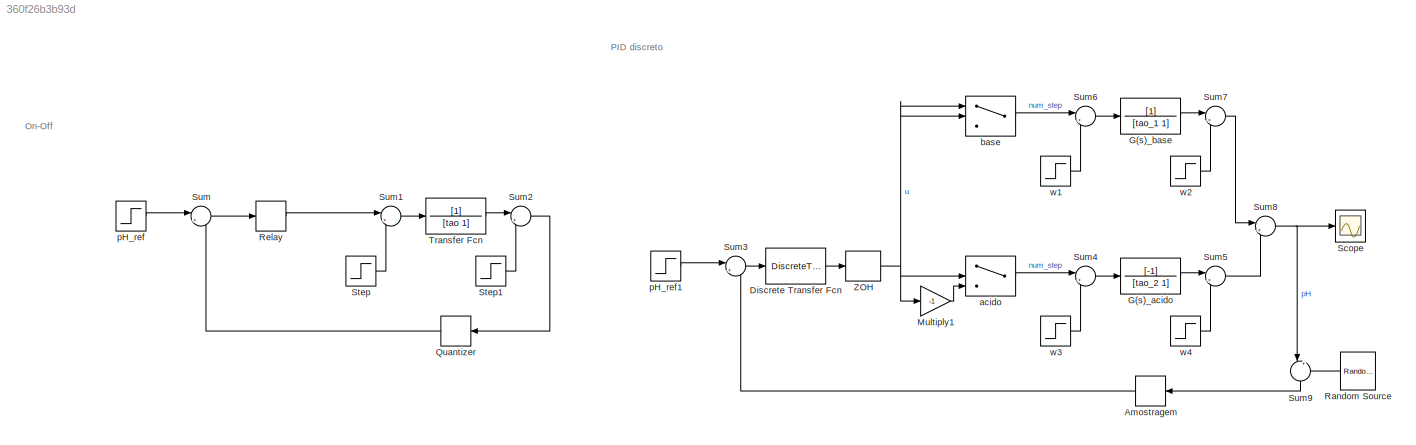
MODEL slx_360f26b3b93d
KIND model
CONFIG AbsTol = auto
CONFIG EnableMultiTasking = off
CONFIG FixedStep = auto
CONFIG MaxStep = auto
CONFIG MinStep = auto
CONFIG RelTol = 1e-3
CONFIG SampleTimeConstraint = Unconstrained
CONFIG SolverName = FixedStepAuto
CONFIG StartTime = 0.0
CONFIG StopTime = 250
BLOCK [Quantizer] Amostragem
  QuantizationInterval = Ta
BLOCK [DiscreteTransferFcn] Discrete Transfer Fcn
  CloseFcn = dspblkCoreblockFVToolHelper(gcbh,'close');
  CopyFcn = dspblkCoreblockFVToolHelper(gcbh,'copy');
  DeleteFcn = dspblkCoreblockFVToolHelper(gcbh,'close');
  Denominator = [1 -1]
  InputPortMap = u0
  LoadFcn = dspblkCoreblockFVToolHelper(gcbh,'load');
  ModelCloseFcn = dspblkCoreblockFVToolHelper(gcbh,'close');
  Numerator = [3.8019 -3.514]
  PostSaveFcn = dspblkCoreblockFVToolHelper(gcbh,'postsave');
  PreSaveFcn = dspblkCoreblockFVToolHelper(gcbh,'presave');
  SampleTime = 5
BLOCK [TransferFcn] G(s)_acido
  Denominator = [tao_2 1]
  NameLocation = top
  Numerator = [-1]
BLOCK [TransferFcn] G(s)_base
  Denominator = [tao_1 1]
  NameLocation = top
BLOCK [Gain] Multiply1
  Gain = -1
BLOCK [Quantizer] Quantizer
BLOCK [Reference] Random Source  REF=dspobslib/Random
Source
  NameLocation = top
  SourceBlock = dspobslib/Random\nSource
  SourceType = Random Source Obsolete
  UserDataPersistent = on
BLOCK [Relay] Relay
  OffSwitchValue = 3
  OnOutputValue = 14
  OnSwitchValue = 3
BLOCK [Scope] Scope
  ActiveDisplayYMaximum = 3.7091149775301897
  ActiveDisplayYMinimum = -0.41212388639224318
  Floating = off
  GraphicalSettings = {"Style":{"BackgroundColor":[0.12941176470588237,0.12941176470588237,0.12941176470588237],"AxesColor":[0.07058823529411765,0.07058823529411765,0.07058823529411765],"LabelsColor":[0.8509803921568627,0.8509803921568627,0.8509803921568627],"PreserveColors":false,"Visible":[true],"LineStyle":["-"],"LineWidth":[1.5],"BarWidth":[0.9],"LineColor":["auto"],"LineFaceAlpha":[1],"LineEdgeAlpha":[1],"Marker":...<+1990ch>
  MultipleDisplayCache = [{"MaxYLimMag":3.7091149775301897,"MaxYLimReal":3.7091149775301897,"MinYLimMag":0,"MinYLimReal":-0.41212388639224318,"PlotAsMagnitudePhase":false,"ShowGrid":true,"ShowLegend":false,"Title":"%<SignalLabel>","YLabel":""}]
  NumInputPorts = 1
  ScopeFrameLocation = window
  WasSavedAsWebScope = on
  WindowPosition = [580.000000,237.000000,560.000000,420.000000,]
BLOCK [Step] Step
  SampleTime = 0
BLOCK [Step] Step1
  SampleTime = 0
BLOCK [Sum] Sum
  Inputs = |+-
BLOCK [Sum] Sum1
  Inputs = |++
BLOCK [Sum] Sum2
  Inputs = |++
BLOCK [Sum] Sum3
  Inputs = |+-
BLOCK [Sum] Sum4
  Inputs = |++
BLOCK [Sum] Sum5
  Inputs = |++
BLOCK [Sum] Sum6
  Inputs = |++
BLOCK [Sum] Sum7
  Inputs = |++
BLOCK [Sum] Sum8
  Inputs = |++
BLOCK [Sum] Sum9
  Inputs = |++
  NameLocation = left
BLOCK [TransferFcn] Transfer Fcn
  Denominator = [tao 1]
BLOCK [ZeroOrderHold] ZOH
  SampleTime = Ta
BLOCK [Switch] acido
  Criteria = u2 > Threshold
  InputSameDT = off
  SaturateOnIntegerOverflow = off
BLOCK [Switch] base
  Criteria = u2 > Threshold
  InputSameDT = off
  SaturateOnIntegerOverflow = off
BLOCK [Step] pH_ref
  After = 3
  SampleTime = 0
  Time = 0
BLOCK [Step] pH_ref1
  After = 3
  SampleTime = 0
  Time = 0
BLOCK [Step] w1
  After = w1
  SampleTime = 0
  Time = 0
BLOCK [Step] w2
  After = w2
  SampleTime = 0
BLOCK [Step] w3
  After = w3
  SampleTime = 0
BLOCK [Step] w4
  After = w4
  SampleTime = 0
ANNOTATION (root): On-Off
ANNOTATION (root): PID discreto
LINE Amostragem:1 -> Sum3:2
LINE Discrete Transfer Fcn:1 -> ZOH:1
LINE G(s)_acido:1 -> Sum5:1
LINE G(s)_base:1 -> Sum7:1
LINE Multiply1:1 -> acido:3
LINE Quantizer:1 -> Sum:2
LINE Random Source:1 -> Sum9:2
LINE Relay:1 -> Sum1:1
LINE Step1:1 -> Sum2:2
LINE Step:1 -> Sum1:2
LINE Sum1:1 -> Transfer Fcn:1
LINE Sum2:1 -> Quantizer:1
LINE Sum3:1 -> Discrete Transfer Fcn:1
LINE Sum4:1 -> G(s)_acido:1
LINE Sum5:1 -> Sum8:2
LINE Sum6:1 -> G(s)_base:1
LINE Sum7:1 -> Sum8:1
NET Sum8:1 -> Scope:1, Sum9:1
LINE Sum9:1 -> Amostragem:1
LINE Sum:1 -> Relay:1
LINE Transfer Fcn:1 -> Sum2:1
NET ZOH:1 -> Multiply1:1, acido:2, base:1, base:2
LINE acido:1 -> Sum4:1
LINE base:1 -> Sum6:1
LINE pH_ref1:1 -> Sum3:1
LINE pH_ref:1 -> Sum:1
LINE w1:1 -> Sum6:2
LINE w2:1 -> Sum7:2
LINE w3:1 -> Sum4:2
LINE w4:1 -> Sum5:2
note: NET lines group one-source signal fan-out (src -> all destinations, sorted); 1:1 wires keep LINE
